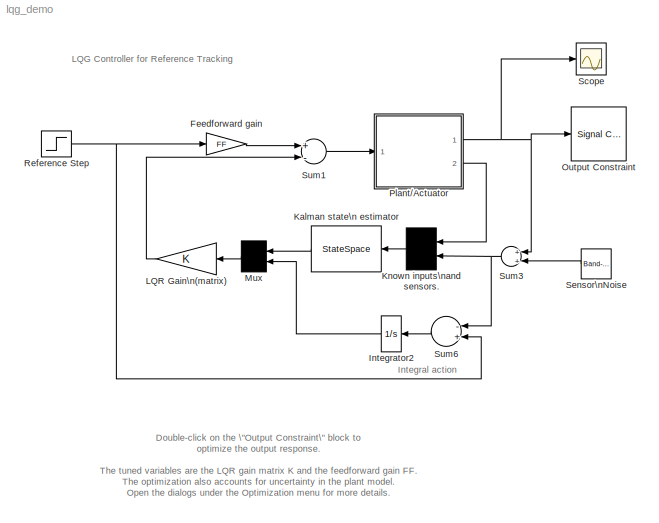
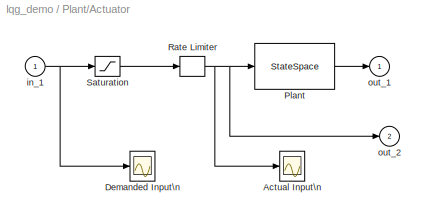
MODEL lqg_demo
KIND model
CONFIG PreLoadFcn = load lqg_demo
BLOCK [Gain] Feedforward gain
  Gain = FF
BLOCK [Integrator] Integrator2
  MaskIconFrame = on
  MaskIconOpaque = on
  MaskIconRotate = none
  MaskIconUnits = autoscale
  Ports = [1, 1]
BLOCK [StateSpace] Kalman state\n estimator
  A = ae
  B = be
  C = ce
  D = de
BLOCK [Mux] Known inputs\nand sensors.
  Inputs = [1,1]
  MaskIconFrame = on
  MaskIconOpaque = on
  MaskIconRotate = none
  MaskIconUnits = autoscale
  Ports = [2, 1]
BLOCK [Gain] LQR Gain\n(matrix)
  Gain = K
  Multiplication = Matrix(K*u)
  OutDataTypeMode = Inherit via internal rule
  ParameterDataTypeMode = Inherit via internal rule
  SaturateOnIntegerOverflow = off
BLOCK [Mux] Mux
  Inputs = [4,1]
  MaskIconFrame = on
  MaskIconOpaque = on
  MaskIconRotate = none
  MaskIconUnits = autoscale
  Ports = [2, 1]
BLOCK [Reference] Output Constraint  REF=srolib/Signal Constraint  (lib defined in mdl_d992e5ea460a)
  DialogPosition = [0.063125 0.2675 0.36375 0.274166666666667]
  LogID = SRO_DataLog_1
  Ports = [1]
  SaveAs = lqg_optim
  SaveIn = workspace
  ShowPortLabels = on
  SourceBlock = srolib/Signal Constraint
  SourceType = Signal Constraint
  Ylim = [-0.2 1.6]
BLOCK [SubSystem] Plant//Actuator
  MinAlgLoopOccurrences = off
  Ports = [1, 2]
  PropExecContextAcrossSSBoundary = on
  RTWSystemCode = Auto
  TreatAsAtomicUnit = off
BLOCK [Scope] Plant//Actuator/Actual Input\n
  DataFormat = Array
  NumInputPorts = 1
  Ports = [1]
  TickLabels = on
  TimeRange = 10.100000
  YMax = 3.000000
  YMin = -3.000000
BLOCK [Scope] Plant//Actuator/Demanded Input\n
  DataFormat = Array
  NumInputPorts = 1
  Ports = [1]
  TickLabels = on
  TimeRange = 10.100000
  YMax = 3.000000
  YMin = -3.000000
BLOCK [StateSpace] Plant//Actuator/Plant
  A = a
  B = b
  C = c
  D = d
BLOCK [RateLimiter] Plant//Actuator/Rate Limiter
  FallingSlewLimit = -10
  RisingSlewLimit = 10
BLOCK [Saturate] Plant//Actuator/Saturation
  LowerLimit = -5
  UpperLimit = 5
BLOCK [Inport] Plant//Actuator/in_1
  IconDisplay = Port number
  LatchInput = off
BLOCK [Outport] Plant//Actuator/out_1
  BusOutputAsStruct = off
  IconDisplay = Port number
  InitialOutput = 0
BLOCK [Outport] Plant//Actuator/out_2
  BusOutputAsStruct = off
  IconDisplay = Port number
  InitialOutput = 0
  Port = 2
BLOCK [Step] Reference Step
  SampleTime = 0
BLOCK [Scope] Scope
  DataFormat = StructureWithTime
  NumInputPorts = 1
  Ports = [1]
  SaveName = ScopeData1
BLOCK [Reference] Sensor\nNoise  REF=simulink/Sources/Band-Limited\nWhite Noise
  Cov = 1e-5
  Ports = [0, 1]
  ShowPortLabels = on
  SourceBlock = simulink/Sources/Band-Limited\nWhite Noise
  SourceType = Band-Limited White Noise.
  Ts = 0.1
  VectorParams1D = on
  seed = [23341]
BLOCK [Sum] Sum1
  Inputs = +-
  Ports = [2, 1]
BLOCK [Sum] Sum3
  MaskIconFrame = on
  MaskIconOpaque = on
  MaskIconRotate = none
  MaskIconUnits = autoscale
  Ports = [2, 1]
BLOCK [Sum] Sum6
  Inputs = -+
  MaskIconFrame = on
  MaskIconOpaque = on
  MaskIconRotate = none
  MaskIconUnits = autoscale
  Ports = [2, 1]
ANNOTATION (root): Double-click on the \"Output Constraint\" block to \noptimize the output response.\n\nThe tuned variables are the LQR gain matrix K and the feedforward gain FF. \n The optimization also accounts for uncertainty in the plant model.\nOpen the dialogs under the Optimization menu for more details.
ANNOTATION (root): Integral action
ANNOTATION (root): LQG Controller for Reference Tracking
LINE Feedforward gain:1 -> Sum1:1
LINE Integrator2:1 -> Mux:2
LINE Kalman state\n estimator:1 -> Mux:1
LINE Known inputs\nand sensors.:1 -> Kalman state\n estimator:1
LINE LQR Gain\n(matrix):1 -> Sum1:2
LINE Mux:1 -> LQR Gain\n(matrix):1
LINE Plant//Actuator/Plant:1 -> Plant//Actuator/out_1:1
NET Plant//Actuator/Rate Limiter:1 -> Plant//Actuator/Actual Input\n:1, Plant//Actuator/Plant:1, Plant//Actuator/out_2:1
LINE Plant//Actuator/Saturation:1 -> Plant//Actuator/Rate Limiter:1
NET Plant//Actuator/in_1:1 -> Plant//Actuator/Demanded Input\n:1, Plant//Actuator/Saturation:1
NET Plant//Actuator:1 -> Output Constraint:1, Scope:1, Sum3:1
LINE Plant//Actuator:2 -> Known inputs\nand sensors.:1
NET Reference Step:1 -> Feedforward gain:1, Sum6:2
LINE Sensor\nNoise:1 -> Sum3:2
LINE Sum1:1 -> Plant//Actuator:1
NET Sum3:1 -> Known inputs\nand sensors.:2, Sum6:1
LINE Sum6:1 -> Integrator2:1
note: NET lines group one-source signal fan-out (src -> all destinations, sorted); 1:1 wires keep LINE
